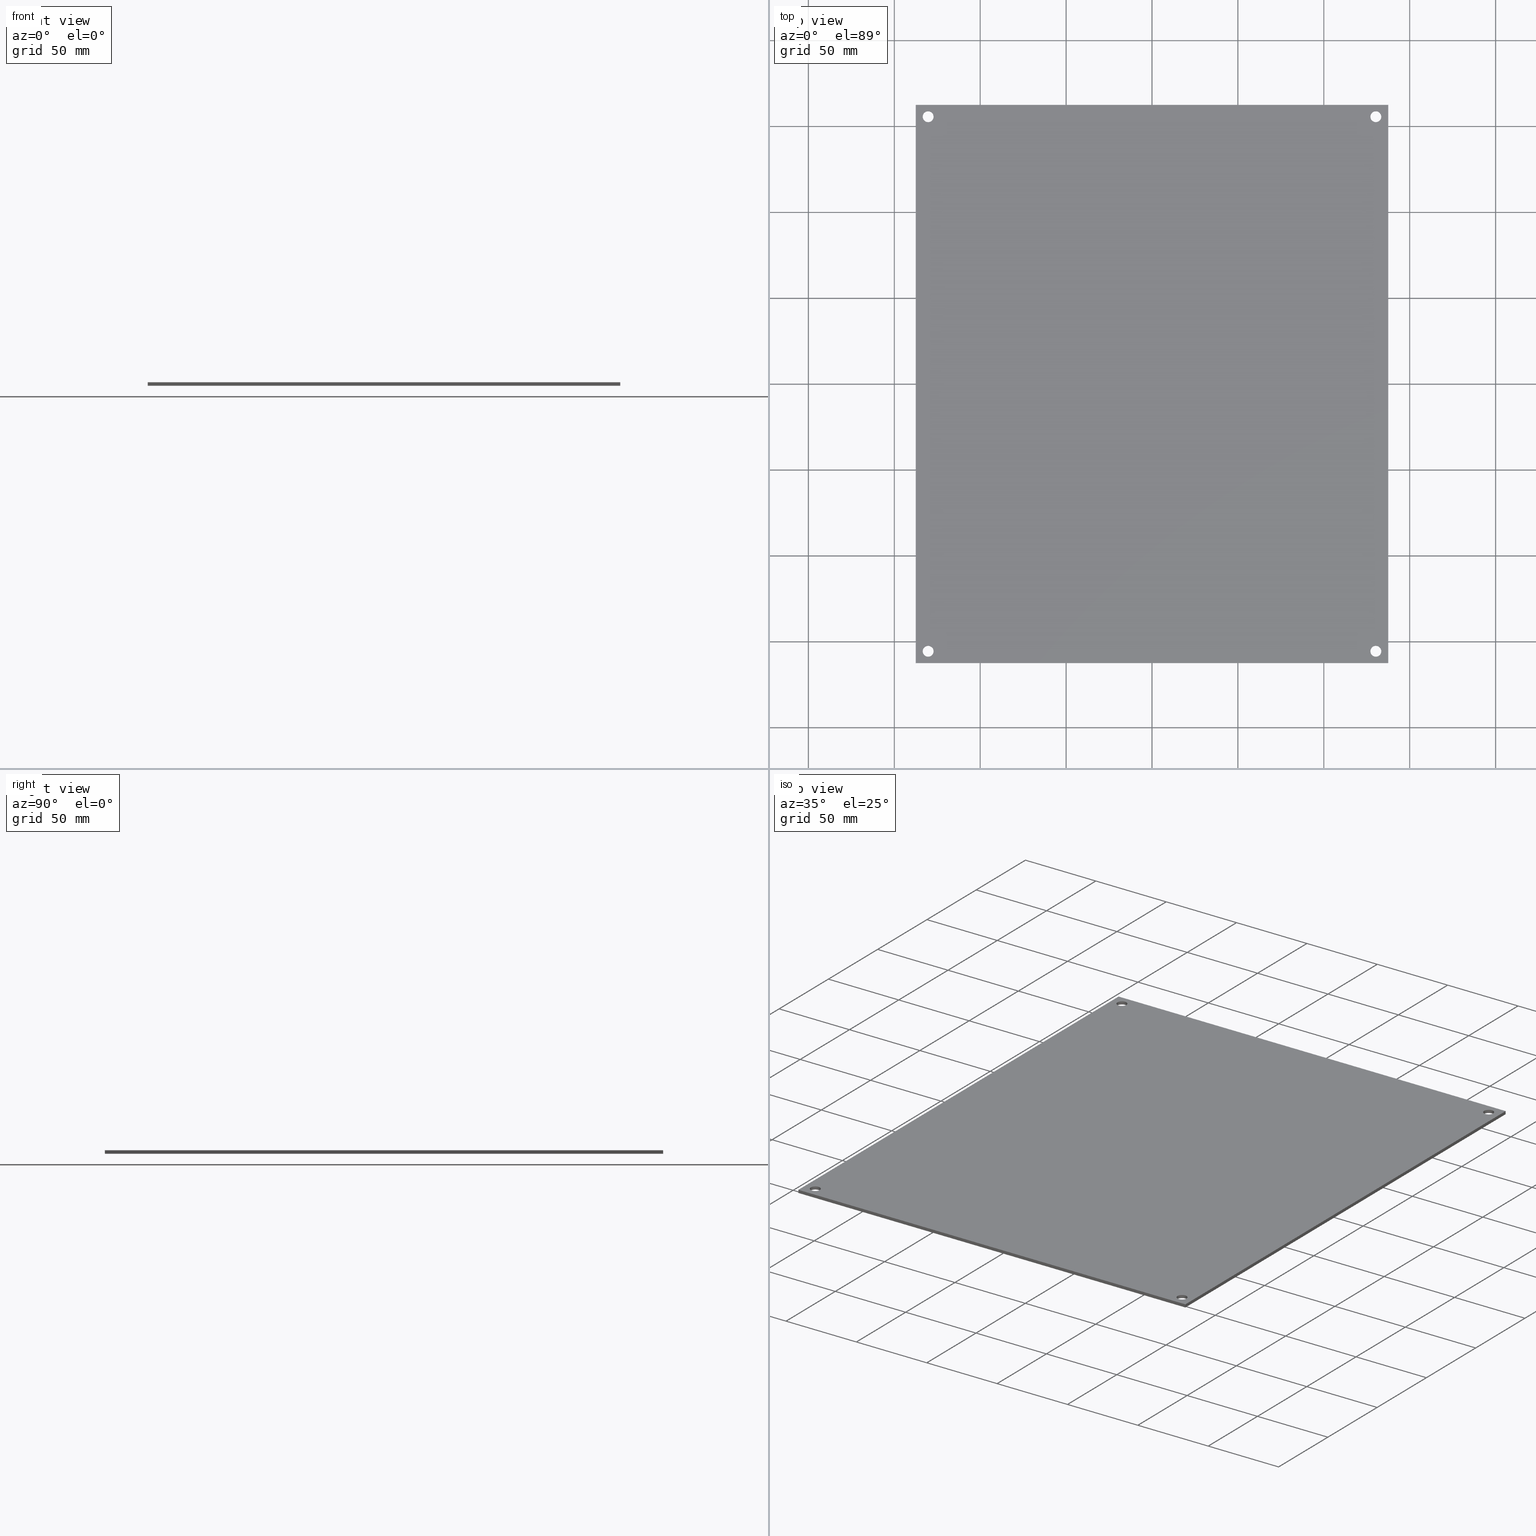
[diagram: canonical four-view strip — front | top / right | iso, engineering-drawing reading convention]
A machine part, canonical four-view strip (front | top / right | iso — engineering-drawing reading convention). The complete STEP part file that produces these views, byte-faithful:
ISO-10303-21;
HEADER;
FILE_DESCRIPTION (( 'STEP AP214' ),
    '1' );
FILE_NAME ('FIBOX_ABP1412.STEP',
    '2010-03-08T07:35:31',
    ( 'KennethW' ),
    ( 'FIBOX' ),
    'SwSTEP 2.0',
    'SolidWorks 2009',
    '' );
FILE_SCHEMA (( 'AUTOMOTIVE_DESIGN' ));
ENDSEC;

DATA;
#1 = EDGE_CURVE ( 'NONE', #2, #3, #235, .T. ) ;
#2 = VERTEX_POINT ( 'NONE', #230 ) ;
#3 = VERTEX_POINT ( 'NONE', #229 ) ;
#4 = ORIENTED_EDGE ( 'NONE', *, *, #5, .T. ) ;
#5 = EDGE_CURVE ( 'NONE', #3, #6, #99, .T. ) ;
#6 = VERTEX_POINT ( 'NONE', #95 ) ;
#7 = VERTEX_POINT ( 'NONE', #94 ) ;
#8 = ORIENTED_EDGE ( 'NONE', *, *, #10, .F. ) ;
#9 = ORIENTED_EDGE ( 'NONE', *, *, #11, .T. ) ;
#10 = EDGE_CURVE ( 'NONE', #25, #27, #93, .T. ) ;
#11 = EDGE_CURVE ( 'NONE', #49, #27, #88, .T. ) ;
#12 = VERTEX_POINT ( 'NONE', #84 ) ;
#13 = ORIENTED_EDGE ( 'NONE', *, *, #14, .F. ) ;
#14 = EDGE_CURVE ( 'NONE', #48, #25, #83, .T. ) ;
#15 = EDGE_CURVE ( 'NONE', #12, #7, #79, .T. ) ;
#16 = ORIENTED_EDGE ( 'NONE', *, *, #17, .F. ) ;
#17 = EDGE_CURVE ( 'NONE', #22, #21, #201, .T. ) ;
#18 = ORIENTED_EDGE ( 'NONE', *, *, #50, .F. ) ;
#19 = ORIENTED_EDGE ( 'NONE', *, *, #20, .T. ) ;
#20 = EDGE_CURVE ( 'NONE', #7, #21, #196, .T. ) ;
#21 = VERTEX_POINT ( 'NONE', #192 ) ;
#22 = VERTEX_POINT ( 'NONE', #191 ) ;
#23 = ADVANCED_FACE ( 'NONE', ( #190 ), #189, .F. ) ;
#24 = ORIENTED_EDGE ( 'NONE', *, *, #15, .T. ) ;
#25 = VERTEX_POINT ( 'NONE', #188 ) ;
#26 = EDGE_LOOP ( 'NONE', ( #24, #19, #16, #18 ) ) ;
#27 = VERTEX_POINT ( 'NONE', #183 ) ;
#28 = ORIENTED_EDGE ( 'NONE', *, *, #62, .F. ) ;
#29 = ADVANCED_FACE ( 'NONE', ( #182, #181, #180, #179, #178 ), #177, .T. ) ;
#30 = EDGE_LOOP ( 'NONE', ( #28, #66 ) ) ;
#31 = ORIENTED_EDGE ( 'NONE', *, *, #34, .T. ) ;
#32 = EDGE_CURVE ( 'NONE', #7, #12, #171, .T. ) ;
#33 = EDGE_CURVE ( 'NONE', #64, #63, #324, .T. ) ;
#34 = EDGE_CURVE ( 'NONE', #71, #74, #320, .T. ) ;
#35 = VERTEX_POINT ( 'NONE', #316 ) ;
#36 = ORIENTED_EDGE ( 'NONE', *, *, #37, .T. ) ;
#37 = EDGE_CURVE ( 'NONE', #64, #38, #315, .T. ) ;
#38 = VERTEX_POINT ( 'NONE', #311 ) ;
#39 = ORIENTED_EDGE ( 'NONE', *, *, #40, .F. ) ;
#40 = EDGE_CURVE ( 'NONE', #41, #38, #310, .T. ) ;
#41 = VERTEX_POINT ( 'NONE', #305 ) ;
#42 = ORIENTED_EDGE ( 'NONE', *, *, #43, .F. ) ;
#43 = EDGE_CURVE ( 'NONE', #63, #41, #304, .T. ) ;
#44 = ADVANCED_FACE ( 'NONE', ( #300 ), #299, .F. ) ;
#45 = EDGE_LOOP ( 'NONE', ( #46, #9, #8, #13 ) ) ;
#46 = ORIENTED_EDGE ( 'NONE', *, *, #47, .T. ) ;
#47 = EDGE_CURVE ( 'NONE', #48, #49, #228, .T. ) ;
#48 = VERTEX_POINT ( 'NONE', #223 ) ;
#49 = VERTEX_POINT ( 'NONE', #222 ) ;
#50 = EDGE_CURVE ( 'NONE', #12, #22, #220, .T. ) ;
#51 = MANIFOLD_SOLID_BREP ( 'NONE', #143 ) ;
#52 = ADVANCED_FACE ( 'NONE', ( #202 ), #129, .F. ) ;
#53 = EDGE_LOOP ( 'NONE', ( #65, #4, #54, #57 ) ) ;
#54 = ORIENTED_EDGE ( 'NONE', *, *, #55, .F. ) ;
#55 = EDGE_CURVE ( 'NONE', #56, #6, #127, .T. ) ;
#56 = VERTEX_POINT ( 'NONE', #119 ) ;
#57 = ORIENTED_EDGE ( 'NONE', *, *, #58, .F. ) ;
#58 = EDGE_CURVE ( 'NONE', #2, #56, #118, .T. ) ;
#59 = ADVANCED_FACE ( 'NONE', ( #114 ), #112, .F. ) ;
#60 = EDGE_LOOP ( 'NONE', ( #61, #36, #39, #42 ) ) ;
#61 = ORIENTED_EDGE ( 'NONE', *, *, #62, .T. ) ;
#62 = EDGE_CURVE ( 'NONE', #63, #64, #113, .T. ) ;
#63 = VERTEX_POINT ( 'NONE', #103 ) ;
#64 = VERTEX_POINT ( 'NONE', #102 ) ;
#65 = ORIENTED_EDGE ( 'NONE', *, *, #1, .T. ) ;
#66 = ORIENTED_EDGE ( 'NONE', *, *, #33, .F. ) ;
#67 = ORIENTED_EDGE ( 'NONE', *, *, #154, .T. ) ;
#68 = EDGE_CURVE ( 'NONE', #35, #71, #101, .T. ) ;
#69 = ORIENTED_EDGE ( 'NONE', *, *, #15, .F. ) ;
#70 = EDGE_LOOP ( 'NONE', ( #69, #73 ) ) ;
#71 = VERTEX_POINT ( 'NONE', #360 ) ;
#72 = EDGE_LOOP ( 'NONE', ( #67, #144, #31, #145 ) ) ;
#73 = ORIENTED_EDGE ( 'NONE', *, *, #32, .F. ) ;
#74 = VERTEX_POINT ( 'NONE', #359 ) ;
#75 = DIRECTION ( 'NONE',  ( 1.000000000000000000, 0.0000000000000000000, 0.0000000000000000000 ) ) ;
#76 = DIRECTION ( 'NONE',  ( 0.0000000000000000000, 0.0000000000000000000, 1.000000000000000000 ) ) ;
#77 = CARTESIAN_POINT ( 'NONE',  ( -130.3000000000000100, 155.5999999999999900, 2.000000000000000000 ) ) ;
#78 = AXIS2_PLACEMENT_3D ( 'NONE', #77, #76, #75 ) ;
#79 = CIRCLE ( 'NONE', #78, 3.175000000000011400 ) ;
#80 = DIRECTION ( 'NONE',  ( -0.0000000000000000000, -0.0000000000000000000, -1.000000000000000000 ) ) ;
#81 = VECTOR ( 'NONE', #80, 1000.000000000000000 ) ;
#82 = CARTESIAN_POINT ( 'NONE',  ( 127.1249999999999900, 155.5999999999999900, 2.000000000000000000 ) ) ;
#83 = LINE ( 'NONE', #82, #81 ) ;
#84 = CARTESIAN_POINT ( 'NONE',  ( -133.4750000000000200, 155.5999999999999900, 2.000000000000000000 ) ) ;
#85 = DIRECTION ( 'NONE',  ( -0.0000000000000000000, -0.0000000000000000000, -1.000000000000000000 ) ) ;
#86 = VECTOR ( 'NONE', #85, 1000.000000000000000 ) ;
#87 = CARTESIAN_POINT ( 'NONE',  ( 133.4750000000000200, 155.5999999999999900, 2.000000000000000000 ) ) ;
#88 = LINE ( 'NONE', #87, #86 ) ;
#89 = DIRECTION ( 'NONE',  ( 1.000000000000000000, 0.0000000000000000000, 0.0000000000000000000 ) ) ;
#90 = DIRECTION ( 'NONE',  ( 0.0000000000000000000, 0.0000000000000000000, 1.000000000000000000 ) ) ;
#91 = CARTESIAN_POINT ( 'NONE',  ( 130.3000000000000100, 155.5999999999999900, 0.0000000000000000000 ) ) ;
#92 = AXIS2_PLACEMENT_3D ( 'NONE', #91, #90, #89 ) ;
#93 = CIRCLE ( 'NONE', #92, 3.175000000000011400 ) ;
#94 = CARTESIAN_POINT ( 'NONE',  ( -127.1249999999999900, 155.5999999999999900, 2.000000000000000000 ) ) ;
#95 = CARTESIAN_POINT ( 'NONE',  ( -127.1249999999999900, -155.5999999999999900, 0.0000000000000000000 ) ) ;
#96 = DIRECTION ( 'NONE',  ( -0.0000000000000000000, -0.0000000000000000000, -1.000000000000000000 ) ) ;
#97 = VECTOR ( 'NONE', #96, 1000.000000000000000 ) ;
#98 = CARTESIAN_POINT ( 'NONE',  ( -127.1249999999999900, -155.5999999999999900, 2.000000000000000000 ) ) ;
#99 = LINE ( 'NONE', #98, #97 ) ;
#100 = CARTESIAN_POINT ( 'NONE',  ( -137.5000000000000000, -162.5000000000000000, 2.000000000000000000 ) ) ;
#101 = LINE ( 'NONE', #100, #400 ) ;
#102 = CARTESIAN_POINT ( 'NONE',  ( 133.4750000000000200, -155.5999999999999900, 2.000000000000000000 ) ) ;
#103 = CARTESIAN_POINT ( 'NONE',  ( 127.1249999999999900, -155.5999999999999900, 2.000000000000000000 ) ) ;
#104 = DIRECTION ( 'NONE',  ( 1.000000000000000000, 0.0000000000000000000, 0.0000000000000000000 ) ) ;
#105 = DIRECTION ( 'NONE',  ( 0.0000000000000000000, 0.0000000000000000000, 1.000000000000000000 ) ) ;
#106 = CARTESIAN_POINT ( 'NONE',  ( 130.3000000000000100, -155.5999999999999900, 2.000000000000000000 ) ) ;
#107 = AXIS2_PLACEMENT_3D ( 'NONE', #106, #105, #104 ) ;
#108 = DIRECTION ( 'NONE',  ( -1.000000000000000000, 0.0000000000000000000, 0.0000000000000000000 ) ) ;
#109 = DIRECTION ( 'NONE',  ( -0.0000000000000000000, -0.0000000000000000000, -1.000000000000000000 ) ) ;
#110 = CARTESIAN_POINT ( 'NONE',  ( 130.3000000000000100, -155.5999999999999900, 2.000000000000000000 ) ) ;
#111 = AXIS2_PLACEMENT_3D ( 'NONE', #110, #109, #108 ) ;
#112 = CYLINDRICAL_SURFACE ( 'NONE', #111, 3.175000000000011400 ) ;
#113 = CIRCLE ( 'NONE', #107, 3.175000000000011400 ) ;
#114 = FACE_OUTER_BOUND ( 'NONE', #60, .T. ) ;
#115 = DIRECTION ( 'NONE',  ( -0.0000000000000000000, -0.0000000000000000000, -1.000000000000000000 ) ) ;
#116 = VECTOR ( 'NONE', #115, 1000.000000000000000 ) ;
#117 = CARTESIAN_POINT ( 'NONE',  ( -133.4750000000000200, -155.5999999999999900, 2.000000000000000000 ) ) ;
#118 = LINE ( 'NONE', #117, #116 ) ;
#119 = CARTESIAN_POINT ( 'NONE',  ( -133.4750000000000200, -155.5999999999999900, 0.0000000000000000000 ) ) ;
#120 = DIRECTION ( 'NONE',  ( 1.000000000000000000, 0.0000000000000000000, 0.0000000000000000000 ) ) ;
#121 = DIRECTION ( 'NONE',  ( 0.0000000000000000000, 0.0000000000000000000, 1.000000000000000000 ) ) ;
#122 = CARTESIAN_POINT ( 'NONE',  ( -130.3000000000000100, -155.5999999999999900, 0.0000000000000000000 ) ) ;
#123 = AXIS2_PLACEMENT_3D ( 'NONE', #122, #121, #120 ) ;
#124 = DIRECTION ( 'NONE',  ( -1.000000000000000000, 0.0000000000000000000, 0.0000000000000000000 ) ) ;
#125 = DIRECTION ( 'NONE',  ( -0.0000000000000000000, -0.0000000000000000000, -1.000000000000000000 ) ) ;
#126 = AXIS2_PLACEMENT_3D ( 'NONE', #128, #125, #124 ) ;
#127 = CIRCLE ( 'NONE', #123, 3.175000000000011400 ) ;
#128 = CARTESIAN_POINT ( 'NONE',  ( -130.3000000000000100, -155.5999999999999900, 2.000000000000000000 ) ) ;
#129 = CYLINDRICAL_SURFACE ( 'NONE', #126, 3.175000000000011400 ) ;
#130 = EDGE_LOOP ( 'NONE', ( #131, #132 ) ) ;
#131 = ORIENTED_EDGE ( 'NONE', *, *, #10, .T. ) ;
#132 = ORIENTED_EDGE ( 'NONE', *, *, #133, .T. ) ;
#133 = EDGE_CURVE ( 'NONE', #27, #25, #402, .T. ) ;
#134 = EDGE_LOOP ( 'NONE', ( #135, #136 ) ) ;
#135 = ORIENTED_EDGE ( 'NONE', *, *, #55, .T. ) ;
#136 = ORIENTED_EDGE ( 'NONE', *, *, #137, .T. ) ;
#137 = EDGE_CURVE ( 'NONE', #6, #56, #377, .T. ) ;
#138 = ADVANCED_FACE ( 'NONE', ( #373 ), #372, .F. ) ;
#139 = EDGE_LOOP ( 'NONE', ( #252, #253, #255, #256 ) ) ;
#140 = ORIENTED_EDGE ( 'NONE', *, *, #156, .T. ) ;
#141 = ORIENTED_EDGE ( 'NONE', *, *, #58, .T. ) ;
#142 = ORIENTED_EDGE ( 'NONE', *, *, #137, .F. ) ;
#143 = CLOSED_SHELL ( 'NONE', ( #52, #59, #44, #23, #29, #157, #138, #241, #258, #265, #271, #277, #283, #289 ) ) ;
#144 = ORIENTED_EDGE ( 'NONE', *, *, #68, .T. ) ;
#145 = ORIENTED_EDGE ( 'NONE', *, *, #146, .T. ) ;
#146 = EDGE_CURVE ( 'NONE', #74, #153, #437, .T. ) ;
#147 = EDGE_LOOP ( 'NONE', ( #148, #149 ) ) ;
#148 = ORIENTED_EDGE ( 'NONE', *, *, #47, .F. ) ;
#149 = ORIENTED_EDGE ( 'NONE', *, *, #150, .F. ) ;
#150 = EDGE_CURVE ( 'NONE', #49, #48, #433, .T. ) ;
#151 = EDGE_LOOP ( 'NONE', ( #152, #155 ) ) ;
#152 = ORIENTED_EDGE ( 'NONE', *, *, #1, .F. ) ;
#153 = VERTEX_POINT ( 'NONE', #428 ) ;
#154 = EDGE_CURVE ( 'NONE', #153, #35, #427, .T. ) ;
#155 = ORIENTED_EDGE ( 'NONE', *, *, #156, .F. ) ;
#156 = EDGE_CURVE ( 'NONE', #3, #2, #423, .T. ) ;
#157 = ADVANCED_FACE ( 'NONE', ( #418, #417, #416, #415, #414 ), #413, .F. ) ;
#158 = EDGE_LOOP ( 'NONE', ( #159, #160 ) ) ;
#159 = ORIENTED_EDGE ( 'NONE', *, *, #40, .T. ) ;
#160 = ORIENTED_EDGE ( 'NONE', *, *, #161, .T. ) ;
#161 = EDGE_CURVE ( 'NONE', #38, #41, #407, .T. ) ;
#162 = EDGE_LOOP ( 'NONE', ( #163, #164 ) ) ;
#163 = ORIENTED_EDGE ( 'NONE', *, *, #17, .T. ) ;
#164 = ORIENTED_EDGE ( 'NONE', *, *, #165, .T. ) ;
#165 = EDGE_CURVE ( 'NONE', #21, #22, #399, .T. ) ;
#166 = EDGE_LOOP ( 'NONE', ( #292, #250, #237, #293 ) ) ;
#167 = DIRECTION ( 'NONE',  ( 1.000000000000000000, 0.0000000000000000000, 0.0000000000000000000 ) ) ;
#168 = DIRECTION ( 'NONE',  ( 0.0000000000000000000, 0.0000000000000000000, 1.000000000000000000 ) ) ;
#169 = CARTESIAN_POINT ( 'NONE',  ( -130.3000000000000100, 155.5999999999999900, 2.000000000000000000 ) ) ;
#170 = AXIS2_PLACEMENT_3D ( 'NONE', #169, #168, #167 ) ;
#171 = CIRCLE ( 'NONE', #170, 3.175000000000011400 ) ;
#172 = CARTESIAN_POINT ( 'NONE',  ( 130.3000000000000100, -155.5999999999999900, 2.000000000000000000 ) ) ;
#173 = DIRECTION ( 'NONE',  ( 1.000000000000000000, 0.0000000000000000000, 0.0000000000000000000 ) ) ;
#174 = DIRECTION ( 'NONE',  ( -0.0000000000000000000, 0.0000000000000000000, 1.000000000000000000 ) ) ;
#175 = CARTESIAN_POINT ( 'NONE',  ( -137.5000000000000000, -162.5000000000000000, 2.000000000000000000 ) ) ;
#176 = AXIS2_PLACEMENT_3D ( 'NONE', #175, #174, #173 ) ;
#177 = PLANE ( 'NONE',  #176 ) ;
#178 = FACE_BOUND ( 'NONE', #151, .T. ) ;
#179 = FACE_BOUND ( 'NONE', #147, .T. ) ;
#180 = FACE_OUTER_BOUND ( 'NONE', #72, .T. ) ;
#181 = FACE_BOUND ( 'NONE', #70, .T. ) ;
#182 = FACE_BOUND ( 'NONE', #30, .T. ) ;
#183 = CARTESIAN_POINT ( 'NONE',  ( 133.4750000000000200, 155.5999999999999900, 0.0000000000000000000 ) ) ;
#184 = DIRECTION ( 'NONE',  ( -1.000000000000000000, 0.0000000000000000000, 0.0000000000000000000 ) ) ;
#185 = DIRECTION ( 'NONE',  ( -0.0000000000000000000, -0.0000000000000000000, -1.000000000000000000 ) ) ;
#186 = CARTESIAN_POINT ( 'NONE',  ( -130.3000000000000100, 155.5999999999999900, 2.000000000000000000 ) ) ;
#187 = AXIS2_PLACEMENT_3D ( 'NONE', #186, #185, #184 ) ;
#188 = CARTESIAN_POINT ( 'NONE',  ( 127.1249999999999900, 155.5999999999999900, 0.0000000000000000000 ) ) ;
#189 = CYLINDRICAL_SURFACE ( 'NONE', #187, 3.175000000000011400 ) ;
#190 = FACE_OUTER_BOUND ( 'NONE', #26, .T. ) ;
#191 = CARTESIAN_POINT ( 'NONE',  ( -133.4750000000000200, 155.5999999999999900, 0.0000000000000000000 ) ) ;
#192 = CARTESIAN_POINT ( 'NONE',  ( -127.1249999999999900, 155.5999999999999900, 0.0000000000000000000 ) ) ;
#193 = DIRECTION ( 'NONE',  ( -0.0000000000000000000, -0.0000000000000000000, -1.000000000000000000 ) ) ;
#194 = VECTOR ( 'NONE', #193, 1000.000000000000000 ) ;
#195 = CARTESIAN_POINT ( 'NONE',  ( -127.1249999999999900, 155.5999999999999900, 2.000000000000000000 ) ) ;
#196 = LINE ( 'NONE', #195, #194 ) ;
#197 = DIRECTION ( 'NONE',  ( 1.000000000000000000, 0.0000000000000000000, 0.0000000000000000000 ) ) ;
#198 = DIRECTION ( 'NONE',  ( 0.0000000000000000000, 0.0000000000000000000, 1.000000000000000000 ) ) ;
#199 = CARTESIAN_POINT ( 'NONE',  ( -130.3000000000000100, 155.5999999999999900, 0.0000000000000000000 ) ) ;
#200 = AXIS2_PLACEMENT_3D ( 'NONE', #199, #198, #197 ) ;
#201 = CIRCLE ( 'NONE', #200, 3.175000000000011400 ) ;
#202 = FACE_OUTER_BOUND ( 'NONE', #53, .T. ) ;
#203 =( GEOMETRIC_REPRESENTATION_CONTEXT ( 3 ) GLOBAL_UNCERTAINTY_ASSIGNED_CONTEXT ( ( #204 ) ) GLOBAL_UNIT_ASSIGNED_CONTEXT ( ( #207, #206, #205 ) ) REPRESENTATION_CONTEXT ( 'NONE', 'WORKASPACE' ) );
#204 = UNCERTAINTY_MEASURE_WITH_UNIT (LENGTH_MEASURE( 1.000000000000000100E-005 ), #207, 'distance_accuracy_value', 'NONE');
#205 =( NAMED_UNIT ( * ) SI_UNIT ( $, .STERADIAN. ) SOLID_ANGLE_UNIT ( ) );
#206 =( NAMED_UNIT ( * ) PLANE_ANGLE_UNIT ( ) SI_UNIT ( $, .RADIAN. ) );
#207 =( LENGTH_UNIT ( ) NAMED_UNIT ( * ) SI_UNIT ( .MILLI., .METRE. ) );
#208 = MECHANICAL_DESIGN_GEOMETRIC_PRESENTATION_REPRESENTATION (  '', ( #210 ), #203 ) ;
#209 = PRESENTATION_LAYER_ASSIGNMENT (  '', '', ( #210 ) ) ;
#210 = STYLED_ITEM ( 'NONE', ( #211 ), #51 ) ;
#211 = PRESENTATION_STYLE_ASSIGNMENT (( #212 ) ) ;
#212 = SURFACE_STYLE_USAGE ( .BOTH. , #213 ) ;
#213 = SURFACE_SIDE_STYLE ('',( #214 ) ) ;
#214 = SURFACE_STYLE_FILL_AREA ( #215 ) ;
#215 = FILL_AREA_STYLE ('',( #221 ) ) ;
#216 = COLOUR_RGB ( '',0.7529411764705882200, 0.7529411764705882200, 0.7529411764705882200 ) ;
#217 = DIRECTION ( 'NONE',  ( -0.0000000000000000000, -0.0000000000000000000, -1.000000000000000000 ) ) ;
#218 = VECTOR ( 'NONE', #217, 1000.000000000000000 ) ;
#219 = CARTESIAN_POINT ( 'NONE',  ( -133.4750000000000200, 155.5999999999999900, 2.000000000000000000 ) ) ;
#220 = LINE ( 'NONE', #219, #218 ) ;
#221 = FILL_AREA_STYLE_COLOUR ( '', #216 ) ;
#222 = CARTESIAN_POINT ( 'NONE',  ( 133.4750000000000200, 155.5999999999999900, 2.000000000000000000 ) ) ;
#223 = CARTESIAN_POINT ( 'NONE',  ( 127.1249999999999900, 155.5999999999999900, 2.000000000000000000 ) ) ;
#224 = DIRECTION ( 'NONE',  ( 1.000000000000000000, 0.0000000000000000000, 0.0000000000000000000 ) ) ;
#225 = DIRECTION ( 'NONE',  ( 0.0000000000000000000, 0.0000000000000000000, 1.000000000000000000 ) ) ;
#226 = CARTESIAN_POINT ( 'NONE',  ( 130.3000000000000100, 155.5999999999999900, 2.000000000000000000 ) ) ;
#227 = AXIS2_PLACEMENT_3D ( 'NONE', #226, #225, #224 ) ;
#228 = CIRCLE ( 'NONE', #227, 3.175000000000011400 ) ;
#229 = CARTESIAN_POINT ( 'NONE',  ( -127.1249999999999900, -155.5999999999999900, 2.000000000000000000 ) ) ;
#230 = CARTESIAN_POINT ( 'NONE',  ( -133.4750000000000200, -155.5999999999999900, 2.000000000000000000 ) ) ;
#231 = DIRECTION ( 'NONE',  ( 1.000000000000000000, 0.0000000000000000000, 0.0000000000000000000 ) ) ;
#232 = DIRECTION ( 'NONE',  ( 0.0000000000000000000, 0.0000000000000000000, 1.000000000000000000 ) ) ;
#233 = CARTESIAN_POINT ( 'NONE',  ( -130.3000000000000100, -155.5999999999999900, 2.000000000000000000 ) ) ;
#234 = AXIS2_PLACEMENT_3D ( 'NONE', #233, #232, #231 ) ;
#235 = CIRCLE ( 'NONE', #234, 3.175000000000011400 ) ;
#236 = EDGE_CURVE ( 'NONE', #251, #247, #394, .T. ) ;
#237 = ORIENTED_EDGE ( 'NONE', *, *, #238, .F. ) ;
#238 = EDGE_CURVE ( 'NONE', #239, #251, #390, .T. ) ;
#239 = VERTEX_POINT ( 'NONE', #386 ) ;
#240 = EDGE_CURVE ( 'NONE', #153, #247, #385, .T. ) ;
#241 = ADVANCED_FACE ( 'NONE', ( #358 ), #357, .F. ) ;
#242 = EDGE_LOOP ( 'NONE', ( #243, #244, #246, #257 ) ) ;
#243 = ORIENTED_EDGE ( 'NONE', *, *, #294, .T. ) ;
#244 = ORIENTED_EDGE ( 'NONE', *, *, #245, .F. ) ;
#245 = EDGE_CURVE ( 'NONE', #71, #239, #352, .T. ) ;
#246 = ORIENTED_EDGE ( 'NONE', *, *, #68, .F. ) ;
#247 = VERTEX_POINT ( 'NONE', #348 ) ;
#248 = VERTEX_POINT ( 'NONE', #347 ) ;
#249 = EDGE_CURVE ( 'NONE', #247, #248, #346, .T. ) ;
#250 = ORIENTED_EDGE ( 'NONE', *, *, #236, .F. ) ;
#251 = VERTEX_POINT ( 'NONE', #342 ) ;
#252 = ORIENTED_EDGE ( 'NONE', *, *, #249, .T. ) ;
#253 = ORIENTED_EDGE ( 'NONE', *, *, #254, .F. ) ;
#254 = EDGE_CURVE ( 'NONE', #35, #248, #341, .T. ) ;
#255 = ORIENTED_EDGE ( 'NONE', *, *, #154, .F. ) ;
#256 = ORIENTED_EDGE ( 'NONE', *, *, #240, .T. ) ;
#257 = ORIENTED_EDGE ( 'NONE', *, *, #254, .T. ) ;
#258 = ADVANCED_FACE ( 'NONE', ( #337 ), #336, .F. ) ;
#259 = EDGE_LOOP ( 'NONE', ( #260, #261, #263, #264 ) ) ;
#260 = ORIENTED_EDGE ( 'NONE', *, *, #238, .T. ) ;
#261 = ORIENTED_EDGE ( 'NONE', *, *, #262, .F. ) ;
#262 = EDGE_CURVE ( 'NONE', #74, #251, #334, .T. ) ;
#263 = ORIENTED_EDGE ( 'NONE', *, *, #34, .F. ) ;
#264 = ORIENTED_EDGE ( 'NONE', *, *, #245, .T. ) ;
#265 = ADVANCED_FACE ( 'NONE', ( #327 ), #326, .F. ) ;
#266 = EDGE_LOOP ( 'NONE', ( #267, #268, #269, #270 ) ) ;
#267 = ORIENTED_EDGE ( 'NONE', *, *, #236, .T. ) ;
#268 = ORIENTED_EDGE ( 'NONE', *, *, #240, .F. ) ;
#269 = ORIENTED_EDGE ( 'NONE', *, *, #146, .F. ) ;
#270 = ORIENTED_EDGE ( 'NONE', *, *, #262, .T. ) ;
#271 = ADVANCED_FACE ( 'NONE', ( #485 ), #484, .F. ) ;
#272 = EDGE_LOOP ( 'NONE', ( #273, #274, #275, #276 ) ) ;
#273 = ORIENTED_EDGE ( 'NONE', *, *, #20, .F. ) ;
#274 = ORIENTED_EDGE ( 'NONE', *, *, #32, .T. ) ;
#275 = ORIENTED_EDGE ( 'NONE', *, *, #50, .T. ) ;
#276 = ORIENTED_EDGE ( 'NONE', *, *, #165, .F. ) ;
#277 = ADVANCED_FACE ( 'NONE', ( #482 ), #478, .F. ) ;
#278 = EDGE_LOOP ( 'NONE', ( #279, #280, #281, #282 ) ) ;
#279 = ORIENTED_EDGE ( 'NONE', *, *, #11, .F. ) ;
#280 = ORIENTED_EDGE ( 'NONE', *, *, #150, .T. ) ;
#281 = ORIENTED_EDGE ( 'NONE', *, *, #14, .T. ) ;
#282 = ORIENTED_EDGE ( 'NONE', *, *, #133, .F. ) ;
#283 = ADVANCED_FACE ( 'NONE', ( #476 ), #472, .F. ) ;
#284 = EDGE_LOOP ( 'NONE', ( #285, #286, #287, #288 ) ) ;
#285 = ORIENTED_EDGE ( 'NONE', *, *, #37, .F. ) ;
#286 = ORIENTED_EDGE ( 'NONE', *, *, #33, .T. ) ;
#287 = ORIENTED_EDGE ( 'NONE', *, *, #43, .T. ) ;
#288 = ORIENTED_EDGE ( 'NONE', *, *, #161, .F. ) ;
#289 = ADVANCED_FACE ( 'NONE', ( #470 ), #466, .F. ) ;
#290 = EDGE_LOOP ( 'NONE', ( #291, #140, #141, #142 ) ) ;
#291 = ORIENTED_EDGE ( 'NONE', *, *, #5, .F. ) ;
#292 = ORIENTED_EDGE ( 'NONE', *, *, #249, .F. ) ;
#293 = ORIENTED_EDGE ( 'NONE', *, *, #294, .F. ) ;
#294 = EDGE_CURVE ( 'NONE', #248, #239, #460, .T. ) ;
#295 = DIRECTION ( 'NONE',  ( -1.000000000000000000, 0.0000000000000000000, 0.0000000000000000000 ) ) ;
#296 = DIRECTION ( 'NONE',  ( -0.0000000000000000000, -0.0000000000000000000, -1.000000000000000000 ) ) ;
#297 = CARTESIAN_POINT ( 'NONE',  ( 130.3000000000000100, 155.5999999999999900, 2.000000000000000000 ) ) ;
#298 = AXIS2_PLACEMENT_3D ( 'NONE', #297, #296, #295 ) ;
#299 = CYLINDRICAL_SURFACE ( 'NONE', #298, 3.175000000000011400 ) ;
#300 = FACE_OUTER_BOUND ( 'NONE', #45, .T. ) ;
#301 = DIRECTION ( 'NONE',  ( -0.0000000000000000000, -0.0000000000000000000, -1.000000000000000000 ) ) ;
#302 = VECTOR ( 'NONE', #301, 1000.000000000000000 ) ;
#303 = CARTESIAN_POINT ( 'NONE',  ( 127.1249999999999900, -155.5999999999999900, 2.000000000000000000 ) ) ;
#304 = LINE ( 'NONE', #303, #302 ) ;
#305 = CARTESIAN_POINT ( 'NONE',  ( 127.1249999999999900, -155.5999999999999900, 0.0000000000000000000 ) ) ;
#306 = DIRECTION ( 'NONE',  ( 1.000000000000000000, 0.0000000000000000000, 0.0000000000000000000 ) ) ;
#307 = DIRECTION ( 'NONE',  ( 0.0000000000000000000, 0.0000000000000000000, 1.000000000000000000 ) ) ;
#308 = CARTESIAN_POINT ( 'NONE',  ( 130.3000000000000100, -155.5999999999999900, 0.0000000000000000000 ) ) ;
#309 = AXIS2_PLACEMENT_3D ( 'NONE', #308, #307, #306 ) ;
#310 = CIRCLE ( 'NONE', #309, 3.175000000000011400 ) ;
#311 = CARTESIAN_POINT ( 'NONE',  ( 133.4750000000000200, -155.5999999999999900, 0.0000000000000000000 ) ) ;
#312 = DIRECTION ( 'NONE',  ( -0.0000000000000000000, -0.0000000000000000000, -1.000000000000000000 ) ) ;
#313 = VECTOR ( 'NONE', #312, 1000.000000000000000 ) ;
#314 = CARTESIAN_POINT ( 'NONE',  ( 133.4750000000000200, -155.5999999999999900, 2.000000000000000000 ) ) ;
#315 = LINE ( 'NONE', #314, #313 ) ;
#316 = CARTESIAN_POINT ( 'NONE',  ( -137.5000000000000000, -162.5000000000000000, 2.000000000000000000 ) ) ;
#317 = DIRECTION ( 'NONE',  ( -0.0000000000000000000, 1.000000000000000000, -0.0000000000000000000 ) ) ;
#318 = VECTOR ( 'NONE', #317, 1000.000000000000000 ) ;
#319 = CARTESIAN_POINT ( 'NONE',  ( 137.5000000000000000, 162.5000000000000000, 2.000000000000000000 ) ) ;
#320 = LINE ( 'NONE', #319, #318 ) ;
#321 = DIRECTION ( 'NONE',  ( 1.000000000000000000, 0.0000000000000000000, 0.0000000000000000000 ) ) ;
#322 = DIRECTION ( 'NONE',  ( 0.0000000000000000000, 0.0000000000000000000, 1.000000000000000000 ) ) ;
#323 = AXIS2_PLACEMENT_3D ( 'NONE', #172, #322, #321 ) ;
#324 = CIRCLE ( 'NONE', #323, 3.175000000000011400 ) ;
#325 = AXIS2_PLACEMENT_3D ( 'NONE', #488, #487, #486 ) ;
#326 = PLANE ( 'NONE',  #325 ) ;
#327 = FACE_OUTER_BOUND ( 'NONE', #266, .T. ) ;
#328 = DIRECTION ( 'NONE',  ( -0.0000000000000000000, -0.0000000000000000000, -1.000000000000000000 ) ) ;
#329 = VECTOR ( 'NONE', #328, 1000.000000000000000 ) ;
#330 = CARTESIAN_POINT ( 'NONE',  ( 137.5000000000000000, 162.5000000000000000, 2.000000000000000000 ) ) ;
#331 = DIRECTION ( 'NONE',  ( 0.0000000000000000000, 0.0000000000000000000, 1.000000000000000000 ) ) ;
#332 = DIRECTION ( 'NONE',  ( -1.000000000000000000, 0.0000000000000000000, 0.0000000000000000000 ) ) ;
#333 = CARTESIAN_POINT ( 'NONE',  ( 137.5000000000000000, 162.5000000000000000, 2.000000000000000000 ) ) ;
#334 = LINE ( 'NONE', #330, #329 ) ;
#335 = AXIS2_PLACEMENT_3D ( 'NONE', #333, #332, #331 ) ;
#336 = PLANE ( 'NONE',  #335 ) ;
#337 = FACE_OUTER_BOUND ( 'NONE', #259, .T. ) ;
#338 = DIRECTION ( 'NONE',  ( -0.0000000000000000000, -0.0000000000000000000, -1.000000000000000000 ) ) ;
#339 = VECTOR ( 'NONE', #338, 1000.000000000000000 ) ;
#340 = CARTESIAN_POINT ( 'NONE',  ( -137.5000000000000000, -162.5000000000000000, 2.000000000000000000 ) ) ;
#341 = LINE ( 'NONE', #340, #339 ) ;
#342 = CARTESIAN_POINT ( 'NONE',  ( 137.5000000000000000, 162.5000000000000000, 0.0000000000000000000 ) ) ;
#343 = DIRECTION ( 'NONE',  ( 0.0000000000000000000, -1.000000000000000000, 0.0000000000000000000 ) ) ;
#344 = VECTOR ( 'NONE', #343, 1000.000000000000000 ) ;
#345 = CARTESIAN_POINT ( 'NONE',  ( -137.5000000000000000, 162.5000000000000000, 0.0000000000000000000 ) ) ;
#346 = LINE ( 'NONE', #345, #344 ) ;
#347 = CARTESIAN_POINT ( 'NONE',  ( -137.5000000000000000, -162.5000000000000000, 0.0000000000000000000 ) ) ;
#348 = CARTESIAN_POINT ( 'NONE',  ( -137.5000000000000000, 162.5000000000000000, 0.0000000000000000000 ) ) ;
#349 = DIRECTION ( 'NONE',  ( -0.0000000000000000000, -0.0000000000000000000, -1.000000000000000000 ) ) ;
#350 = VECTOR ( 'NONE', #349, 1000.000000000000000 ) ;
#351 = CARTESIAN_POINT ( 'NONE',  ( 137.5000000000000000, -162.5000000000000000, 2.000000000000000000 ) ) ;
#352 = LINE ( 'NONE', #351, #350 ) ;
#353 = DIRECTION ( 'NONE',  ( 0.0000000000000000000, -0.0000000000000000000, 1.000000000000000000 ) ) ;
#354 = DIRECTION ( 'NONE',  ( 0.0000000000000000000, 1.000000000000000000, 0.0000000000000000000 ) ) ;
#355 = CARTESIAN_POINT ( 'NONE',  ( -137.5000000000000000, -162.5000000000000000, 2.000000000000000000 ) ) ;
#356 = AXIS2_PLACEMENT_3D ( 'NONE', #355, #354, #353 ) ;
#357 = PLANE ( 'NONE',  #356 ) ;
#358 = FACE_OUTER_BOUND ( 'NONE', #242, .T. ) ;
#359 = CARTESIAN_POINT ( 'NONE',  ( 137.5000000000000000, 162.5000000000000000, 2.000000000000000000 ) ) ;
#360 = CARTESIAN_POINT ( 'NONE',  ( 137.5000000000000000, -162.5000000000000000, 2.000000000000000000 ) ) ;
#361 = UNCERTAINTY_MEASURE_WITH_UNIT (LENGTH_MEASURE( 1.000000000000000100E-005 ), #364, 'distance_accuracy_value', 'NONE');
#362 =( NAMED_UNIT ( * ) SI_UNIT ( $, .STERADIAN. ) SOLID_ANGLE_UNIT ( ) );
#363 =( NAMED_UNIT ( * ) PLANE_ANGLE_UNIT ( ) SI_UNIT ( $, .RADIAN. ) );
#364 =( LENGTH_UNIT ( ) NAMED_UNIT ( * ) SI_UNIT ( .MILLI., .METRE. ) );
#365 = AXIS2_PLACEMENT_3D ( 'NONE', #441, #438, #440 ) ;
#366 = DIRECTION ( 'NONE',  ( 1.000000000000000000, 0.0000000000000000000, 0.0000000000000000000 ) ) ;
#367 = VECTOR ( 'NONE', #366, 1000.000000000000000 ) ;
#368 = DIRECTION ( 'NONE',  ( -0.0000000000000000000, 0.0000000000000000000, -1.000000000000000000 ) ) ;
#369 = DIRECTION ( 'NONE',  ( 1.000000000000000000, 0.0000000000000000000, -0.0000000000000000000 ) ) ;
#370 = CARTESIAN_POINT ( 'NONE',  ( -137.5000000000000000, 162.5000000000000000, 2.000000000000000000 ) ) ;
#371 = AXIS2_PLACEMENT_3D ( 'NONE', #370, #369, #368 ) ;
#372 = PLANE ( 'NONE',  #371 ) ;
#373 = FACE_OUTER_BOUND ( 'NONE', #139, .T. ) ;
#374 = DIRECTION ( 'NONE',  ( 1.000000000000000000, 0.0000000000000000000, 0.0000000000000000000 ) ) ;
#375 = DIRECTION ( 'NONE',  ( 0.0000000000000000000, 0.0000000000000000000, 1.000000000000000000 ) ) ;
#376 = AXIS2_PLACEMENT_3D ( 'NONE', #403, #375, #374 ) ;
#377 = CIRCLE ( 'NONE', #376, 3.175000000000011400 ) ;
#378 = DIRECTION ( 'NONE',  ( 1.000000000000000000, 0.0000000000000000000, 0.0000000000000000000 ) ) ;
#379 = DIRECTION ( 'NONE',  ( 0.0000000000000000000, 0.0000000000000000000, 1.000000000000000000 ) ) ;
#380 = CARTESIAN_POINT ( 'NONE',  ( 130.3000000000000100, 155.5999999999999900, 0.0000000000000000000 ) ) ;
#381 = DIRECTION ( 'NONE',  ( 1.000000000000000000, 0.0000000000000000000, 0.0000000000000000000 ) ) ;
#382 = DIRECTION ( 'NONE',  ( -0.0000000000000000000, -0.0000000000000000000, -1.000000000000000000 ) ) ;
#383 = VECTOR ( 'NONE', #382, 1000.000000000000000 ) ;
#384 = CARTESIAN_POINT ( 'NONE',  ( -137.5000000000000000, 162.5000000000000000, 2.000000000000000000 ) ) ;
#385 = LINE ( 'NONE', #384, #383 ) ;
#386 = CARTESIAN_POINT ( 'NONE',  ( 137.5000000000000000, -162.5000000000000000, 0.0000000000000000000 ) ) ;
#387 = DIRECTION ( 'NONE',  ( -0.0000000000000000000, 1.000000000000000000, -0.0000000000000000000 ) ) ;
#388 = VECTOR ( 'NONE', #387, 1000.000000000000000 ) ;
#389 = CARTESIAN_POINT ( 'NONE',  ( 137.5000000000000000, 162.5000000000000000, 0.0000000000000000000 ) ) ;
#390 = LINE ( 'NONE', #389, #388 ) ;
#391 = DIRECTION ( 'NONE',  ( -1.000000000000000000, -0.0000000000000000000, -0.0000000000000000000 ) ) ;
#392 = VECTOR ( 'NONE', #391, 1000.000000000000000 ) ;
#393 = CARTESIAN_POINT ( 'NONE',  ( -137.5000000000000000, 162.5000000000000000, 0.0000000000000000000 ) ) ;
#394 = LINE ( 'NONE', #393, #392 ) ;
#395 = DIRECTION ( 'NONE',  ( 1.000000000000000000, 0.0000000000000000000, 0.0000000000000000000 ) ) ;
#396 = DIRECTION ( 'NONE',  ( 0.0000000000000000000, 0.0000000000000000000, 1.000000000000000000 ) ) ;
#397 = CARTESIAN_POINT ( 'NONE',  ( -130.3000000000000100, 155.5999999999999900, 0.0000000000000000000 ) ) ;
#398 = AXIS2_PLACEMENT_3D ( 'NONE', #397, #396, #395 ) ;
#399 = CIRCLE ( 'NONE', #398, 3.175000000000011400 ) ;
#400 = VECTOR ( 'NONE', #381, 1000.000000000000000 ) ;
#401 = AXIS2_PLACEMENT_3D ( 'NONE', #380, #379, #378 ) ;
#402 = CIRCLE ( 'NONE', #401, 3.175000000000011400 ) ;
#403 = CARTESIAN_POINT ( 'NONE',  ( -130.3000000000000100, -155.5999999999999900, 0.0000000000000000000 ) ) ;
#404 = DIRECTION ( 'NONE',  ( 1.000000000000000000, 0.0000000000000000000, 0.0000000000000000000 ) ) ;
#405 = DIRECTION ( 'NONE',  ( 0.0000000000000000000, 0.0000000000000000000, 1.000000000000000000 ) ) ;
#406 = AXIS2_PLACEMENT_3D ( 'NONE', #411, #405, #404 ) ;
#407 = CIRCLE ( 'NONE', #406, 3.175000000000011400 ) ;
#408 = DIRECTION ( 'NONE',  ( 1.000000000000000000, 0.0000000000000000000, 0.0000000000000000000 ) ) ;
#409 = DIRECTION ( 'NONE',  ( -0.0000000000000000000, 0.0000000000000000000, 1.000000000000000000 ) ) ;
#410 = CARTESIAN_POINT ( 'NONE',  ( -137.5000000000000000, -162.5000000000000000, 0.0000000000000000000 ) ) ;
#411 = CARTESIAN_POINT ( 'NONE',  ( 130.3000000000000100, -155.5999999999999900, 0.0000000000000000000 ) ) ;
#412 = AXIS2_PLACEMENT_3D ( 'NONE', #410, #409, #408 ) ;
#413 = PLANE ( 'NONE',  #412 ) ;
#414 = FACE_BOUND ( 'NONE', #134, .T. ) ;
#415 = FACE_BOUND ( 'NONE', #130, .T. ) ;
#416 = FACE_OUTER_BOUND ( 'NONE', #166, .T. ) ;
#417 = FACE_BOUND ( 'NONE', #162, .T. ) ;
#418 = FACE_BOUND ( 'NONE', #158, .T. ) ;
#419 = DIRECTION ( 'NONE',  ( 1.000000000000000000, 0.0000000000000000000, 0.0000000000000000000 ) ) ;
#420 = DIRECTION ( 'NONE',  ( 0.0000000000000000000, 0.0000000000000000000, 1.000000000000000000 ) ) ;
#421 = CARTESIAN_POINT ( 'NONE',  ( -130.3000000000000100, -155.5999999999999900, 2.000000000000000000 ) ) ;
#422 = AXIS2_PLACEMENT_3D ( 'NONE', #421, #420, #419 ) ;
#423 = CIRCLE ( 'NONE', #422, 3.175000000000011400 ) ;
#424 = DIRECTION ( 'NONE',  ( 0.0000000000000000000, -1.000000000000000000, 0.0000000000000000000 ) ) ;
#425 = VECTOR ( 'NONE', #424, 1000.000000000000000 ) ;
#426 = CARTESIAN_POINT ( 'NONE',  ( -137.5000000000000000, 162.5000000000000000, 2.000000000000000000 ) ) ;
#427 = LINE ( 'NONE', #426, #425 ) ;
#428 = CARTESIAN_POINT ( 'NONE',  ( -137.5000000000000000, 162.5000000000000000, 2.000000000000000000 ) ) ;
#429 = DIRECTION ( 'NONE',  ( 1.000000000000000000, 0.0000000000000000000, 0.0000000000000000000 ) ) ;
#430 = DIRECTION ( 'NONE',  ( 0.0000000000000000000, 0.0000000000000000000, 1.000000000000000000 ) ) ;
#431 = CARTESIAN_POINT ( 'NONE',  ( 130.3000000000000100, 155.5999999999999900, 2.000000000000000000 ) ) ;
#432 = AXIS2_PLACEMENT_3D ( 'NONE', #431, #430, #429 ) ;
#433 = CIRCLE ( 'NONE', #432, 3.175000000000011400 ) ;
#434 = DIRECTION ( 'NONE',  ( -1.000000000000000000, -0.0000000000000000000, -0.0000000000000000000 ) ) ;
#435 = VECTOR ( 'NONE', #434, 1000.000000000000000 ) ;
#436 = CARTESIAN_POINT ( 'NONE',  ( -137.5000000000000000, 162.5000000000000000, 2.000000000000000000 ) ) ;
#437 = LINE ( 'NONE', #436, #435 ) ;
#438 = DIRECTION ( 'NONE',  ( 0.0000000000000000000, 0.0000000000000000000, 1.000000000000000000 ) ) ;
#439 = SHAPE_DEFINITION_REPRESENTATION ( #489, #458 ) ;
#440 = DIRECTION ( 'NONE',  ( 1.000000000000000000, 0.0000000000000000000, 0.0000000000000000000 ) ) ;
#441 = CARTESIAN_POINT ( 'NONE',  ( 0.0000000000000000000, 0.0000000000000000000, 0.0000000000000000000 ) ) ;
#442 =( GEOMETRIC_REPRESENTATION_CONTEXT ( 3 ) GLOBAL_UNCERTAINTY_ASSIGNED_CONTEXT ( ( #443 ) ) GLOBAL_UNIT_ASSIGNED_CONTEXT ( ( #446, #445, #444 ) ) REPRESENTATION_CONTEXT ( 'NONE', 'WORKASPACE' ) );
#443 = UNCERTAINTY_MEASURE_WITH_UNIT (LENGTH_MEASURE( 1.000000000000000100E-005 ), #446, 'distance_accuracy_value', 'NONE');
#444 =( NAMED_UNIT ( * ) SI_UNIT ( $, .STERADIAN. ) SOLID_ANGLE_UNIT ( ) );
#445 =( NAMED_UNIT ( * ) PLANE_ANGLE_UNIT ( ) SI_UNIT ( $, .RADIAN. ) );
#446 =( LENGTH_UNIT ( ) NAMED_UNIT ( * ) SI_UNIT ( .MILLI., .METRE. ) );
#447 = MECHANICAL_DESIGN_GEOMETRIC_PRESENTATION_REPRESENTATION (  '', ( #449 ), #442 ) ;
#448 = PRESENTATION_LAYER_ASSIGNMENT (  '', '', ( #449 ) ) ;
#449 = STYLED_ITEM ( 'NONE', ( #450 ), #458 ) ;
#450 = PRESENTATION_STYLE_ASSIGNMENT (( #451 ) ) ;
#451 = SURFACE_STYLE_USAGE ( .BOTH. , #452 ) ;
#452 = SURFACE_SIDE_STYLE ('',( #453 ) ) ;
#453 = SURFACE_STYLE_FILL_AREA ( #454 ) ;
#454 = FILL_AREA_STYLE ('',( #455 ) ) ;
#455 = FILL_AREA_STYLE_COLOUR ( '', #456 ) ;
#456 = COLOUR_RGB ( '',0.7529411764705882200, 0.7529411764705882200, 0.7529411764705882200 ) ;
#457 = APPLICATION_CONTEXT ( 'automotive_design' ) ;
#458 = ADVANCED_BREP_SHAPE_REPRESENTATION ( 'FIBOX_ABP1412', ( #51, #365 ), #459 ) ;
#459 =( GEOMETRIC_REPRESENTATION_CONTEXT ( 3 ) GLOBAL_UNCERTAINTY_ASSIGNED_CONTEXT ( ( #361 ) ) GLOBAL_UNIT_ASSIGNED_CONTEXT ( ( #364, #363, #362 ) ) REPRESENTATION_CONTEXT ( 'NONE', 'WORKASPACE' ) );
#460 = LINE ( 'NONE', #461, #367 ) ;
#461 = CARTESIAN_POINT ( 'NONE',  ( -137.5000000000000000, -162.5000000000000000, 0.0000000000000000000 ) ) ;
#462 = DIRECTION ( 'NONE',  ( -1.000000000000000000, 0.0000000000000000000, 0.0000000000000000000 ) ) ;
#463 = DIRECTION ( 'NONE',  ( -0.0000000000000000000, -0.0000000000000000000, -1.000000000000000000 ) ) ;
#464 = AXIS2_PLACEMENT_3D ( 'NONE', #465, #463, #462 ) ;
#465 = CARTESIAN_POINT ( 'NONE',  ( -130.3000000000000100, -155.5999999999999900, 2.000000000000000000 ) ) ;
#466 = CYLINDRICAL_SURFACE ( 'NONE', #464, 3.175000000000011400 ) ;
#467 = DIRECTION ( 'NONE',  ( -1.000000000000000000, 0.0000000000000000000, 0.0000000000000000000 ) ) ;
#468 = DIRECTION ( 'NONE',  ( -0.0000000000000000000, -0.0000000000000000000, -1.000000000000000000 ) ) ;
#469 = AXIS2_PLACEMENT_3D ( 'NONE', #471, #468, #467 ) ;
#470 = FACE_OUTER_BOUND ( 'NONE', #290, .T. ) ;
#471 = CARTESIAN_POINT ( 'NONE',  ( 130.3000000000000100, -155.5999999999999900, 2.000000000000000000 ) ) ;
#472 = CYLINDRICAL_SURFACE ( 'NONE', #469, 3.175000000000011400 ) ;
#473 = DIRECTION ( 'NONE',  ( -1.000000000000000000, 0.0000000000000000000, 0.0000000000000000000 ) ) ;
#474 = DIRECTION ( 'NONE',  ( -0.0000000000000000000, -0.0000000000000000000, -1.000000000000000000 ) ) ;
#475 = AXIS2_PLACEMENT_3D ( 'NONE', #477, #474, #473 ) ;
#476 = FACE_OUTER_BOUND ( 'NONE', #284, .T. ) ;
#477 = CARTESIAN_POINT ( 'NONE',  ( 130.3000000000000100, 155.5999999999999900, 2.000000000000000000 ) ) ;
#478 = CYLINDRICAL_SURFACE ( 'NONE', #475, 3.175000000000011400 ) ;
#479 = DIRECTION ( 'NONE',  ( -1.000000000000000000, 0.0000000000000000000, 0.0000000000000000000 ) ) ;
#480 = DIRECTION ( 'NONE',  ( -0.0000000000000000000, -0.0000000000000000000, -1.000000000000000000 ) ) ;
#481 = AXIS2_PLACEMENT_3D ( 'NONE', #483, #480, #479 ) ;
#482 = FACE_OUTER_BOUND ( 'NONE', #278, .T. ) ;
#483 = CARTESIAN_POINT ( 'NONE',  ( -130.3000000000000100, 155.5999999999999900, 2.000000000000000000 ) ) ;
#484 = CYLINDRICAL_SURFACE ( 'NONE', #481, 3.175000000000011400 ) ;
#485 = FACE_OUTER_BOUND ( 'NONE', #272, .T. ) ;
#486 = DIRECTION ( 'NONE',  ( 0.0000000000000000000, -0.0000000000000000000, -1.000000000000000000 ) ) ;
#487 = DIRECTION ( 'NONE',  ( 0.0000000000000000000, -1.000000000000000000, 0.0000000000000000000 ) ) ;
#488 = CARTESIAN_POINT ( 'NONE',  ( -137.5000000000000000, 162.5000000000000000, 2.000000000000000000 ) ) ;
#489 = PRODUCT_DEFINITION_SHAPE ( 'NONE', 'NONE',  #492 ) ;
#490 = PRODUCT_RELATED_PRODUCT_CATEGORY ( 'part', '', ( #496 ) ) ;
#491 = PRODUCT_DEFINITION_FORMATION_WITH_SPECIFIED_SOURCE ( 'ANY', '', #496, .NOT_KNOWN. ) ;
#492 = PRODUCT_DEFINITION ( 'UNKNOWN', '', #491, #493 ) ;
#493 = PRODUCT_DEFINITION_CONTEXT ( 'detailed design', #495, 'design' ) ;
#494 = APPLICATION_PROTOCOL_DEFINITION ( 'draft international standard', 'automotive_design', 1998, #495 ) ;
#495 = APPLICATION_CONTEXT ( 'automotive_design' ) ;
#496 = PRODUCT ( 'FIBOX_ABP1412', 'FIBOX_ABP1412', '', ( #497 ) ) ;
#497 = PRODUCT_CONTEXT ( 'NONE', #457, 'mechanical' ) ;
#498 = APPLICATION_PROTOCOL_DEFINITION ( 'draft international standard', 'automotive_design', 1998, #457 ) ;
ENDSEC;
END-ISO-10303-21;
